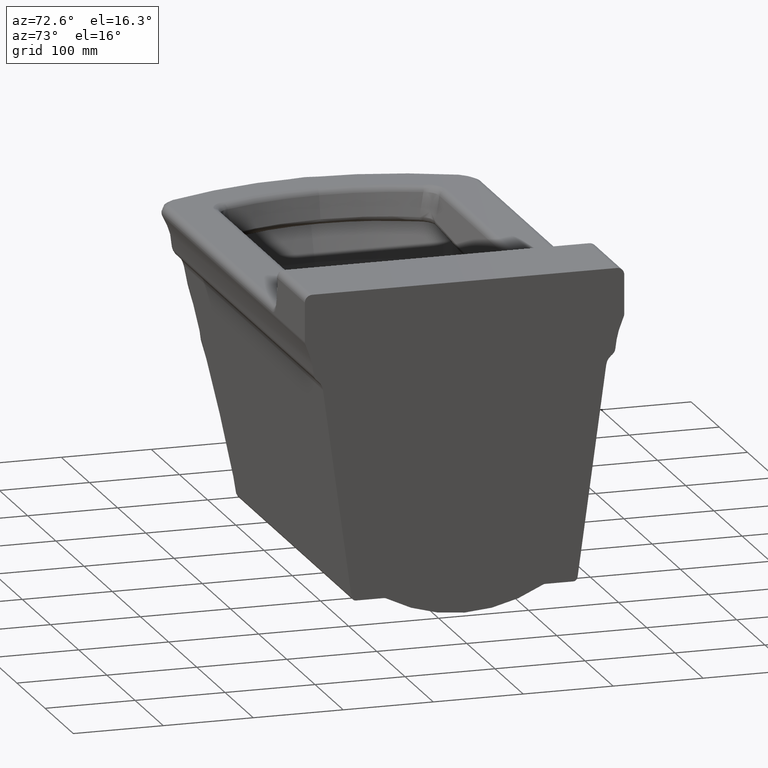
[diagram: clean part render]
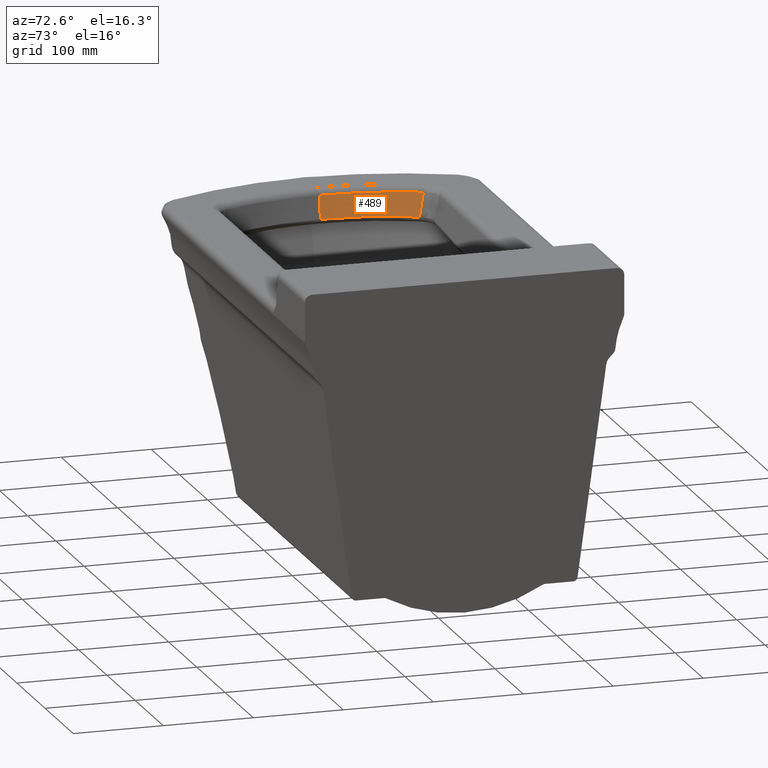
[diagram: same view with one face highlighted and labeled with its STEP entity id]
A machine part, auxiliary view. The second image highlights one B-rep face of the part: STEP entity #489.
In plain terms, the highlighted conical surface has half-angle 11 deg.
Its self-contained STEP definition (entity closure, byte-faithful):
#178=CONICAL_SURFACE('',#3297,286.3779372487,11.);
#258=CIRCLE('',#3296,284.748715752583);
#489=ADVANCED_FACE('',(#744),#178,.F.);
#744=FACE_OUTER_BOUND('',#953,.T.);
#953=EDGE_LOOP('',(#1399,#1400,#1401,#1402));
#1399=ORIENTED_EDGE('',*,*,#2624,.T.);
#1400=ORIENTED_EDGE('',*,*,#2625,.T.);
#1401=ORIENTED_EDGE('',*,*,#2626,.T.);
#1402=ORIENTED_EDGE('',*,*,#2627,.T.);
#2280=VERTEX_POINT('',#6201);
#2281=VERTEX_POINT('',#6202);
#2282=VERTEX_POINT('',#6209);
#2283=VERTEX_POINT('',#6217);
#2624=EDGE_CURVE('',#2280,#2281,#3045,.T.);
#2625=EDGE_CURVE('',#2281,#2282,#3046,.T.);
#2626=EDGE_CURVE('',#2282,#2283,#3047,.T.);
#2627=EDGE_CURVE('',#2283,#2280,#258,.T.);
#3045=B_SPLINE_CURVE_WITH_KNOTS('',3,(#6197,#6198,#6199,#6200),
 .UNSPECIFIED.,.F.,.F.,(4,4),(0.,1.),.UNSPECIFIED.);
#3046=B_SPLINE_CURVE_WITH_KNOTS('',3,(#6203,#6204,#6205,#6206,#6207,#6208),
 .UNSPECIFIED.,.F.,.F.,(4,2,4),(0.,0.5,1.),.UNSPECIFIED.);
#3047=B_SPLINE_CURVE_WITH_KNOTS('',3,(#6210,#6211,#6212,#6213,#6214,#6215,
#6216),.UNSPECIFIED.,.F.,.F.,(4,3,4),(0.,0.568510158927448,1.),
 .UNSPECIFIED.);
#3296=AXIS2_PLACEMENT_3D('',#6218,#3551,#3552);
#3297=AXIS2_PLACEMENT_3D('',#6219,#3553,#3554);
#3551=DIRECTION('',(0.,0.,1.));
#3552=DIRECTION('',(1.,0.,0.));
#3553=DIRECTION('',(0.,0.,1.));
#3554=DIRECTION('',(1.,0.,-9.11097585899918E-17));
#6197=CARTESIAN_POINT('',(-423.576369335103,-0.00538946634959781,-9.15227833322145));
#6198=CARTESIAN_POINT('',(-421.951349605707,-0.00653729206043135,-17.5122821936191));
#6199=CARTESIAN_POINT('',(-420.326329876312,-0.00768511777135883,-25.8722860540168));
#6200=CARTESIAN_POINT('',(-418.701310146916,-0.0088329434822227,-34.2322899144145));
#6201=CARTESIAN_POINT('',(-423.576365200075,0.,-9.15227975928339));
#6202=CARTESIAN_POINT('',(-418.70130707159,0.,-34.2322893166315));
#6203=CARTESIAN_POINT('',(-418.701309919761,-0.00883294364254798,-34.2322910830228));
#6204=CARTESIAN_POINT('',(-418.688645461091,17.7855622833356,-34.2327822025018));
#6205=CARTESIAN_POINT('',(-416.977693372067,35.3427957186591,-34.3208085949118));
#6206=CARTESIAN_POINT('',(-410.242164849387,69.9945595451444,-34.6624849030219));
#6207=CARTESIAN_POINT('',(-405.174173000665,87.1410270789987,-34.9287424449694));
#6208=CARTESIAN_POINT('',(-398.5080829454,103.636102532007,-35.2628071168729));
#6209=CARTESIAN_POINT('',(-398.508082945401,103.636102532005,-35.2628071168729));
#6210=CARTESIAN_POINT('',(-398.508082945401,103.636102532005,-35.2628071168729));
#6211=CARTESIAN_POINT('',(-399.140974639839,104.643409170888,-30.3154909181823));
#6212=CARTESIAN_POINT('',(-399.771289442978,105.650294192681,-25.3677585521835));
#6213=CARTESIAN_POINT('',(-400.399091344287,106.656770794947,-20.419624989591));
#6214=CARTESIAN_POINT('',(-400.875582670536,107.420669996354,-16.6640729296556));
#6215=CARTESIAN_POINT('',(-401.350626449287,108.184334044967,-12.9082890961986));
#6216=CARTESIAN_POINT('',(-401.824249650666,108.947768503782,-9.15227975928339));
#6217=CARTESIAN_POINT('',(-401.824249650666,108.947768503782,-9.15227975928339));
#6218=CARTESIAN_POINT('',(-138.827724339316,-0.206520449524001,-9.1522797592834));
#6219=CARTESIAN_POINT('',(-138.827724339316,-0.206520449524001,-0.770661768530312));